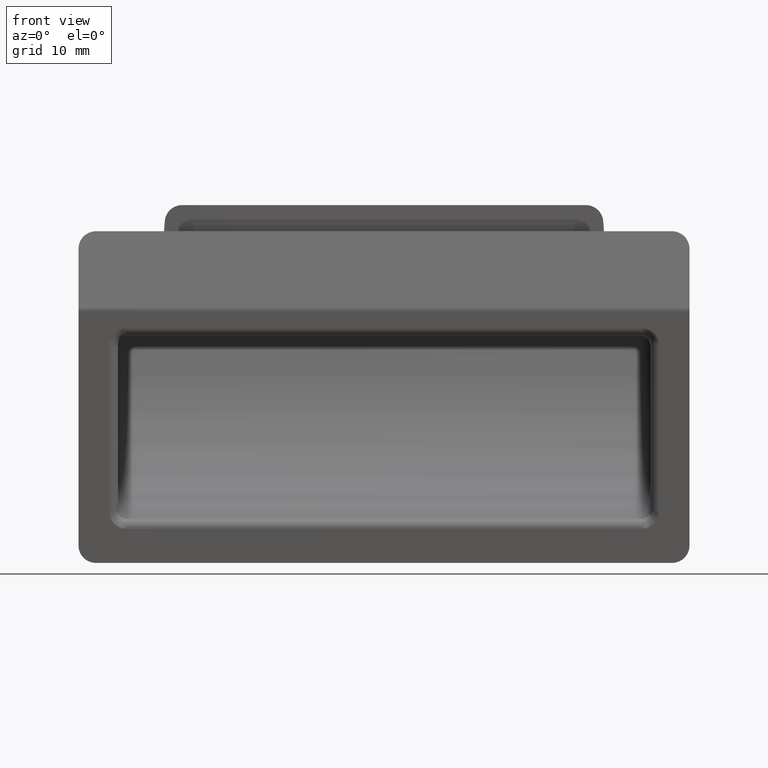
[diagram: clean part render]
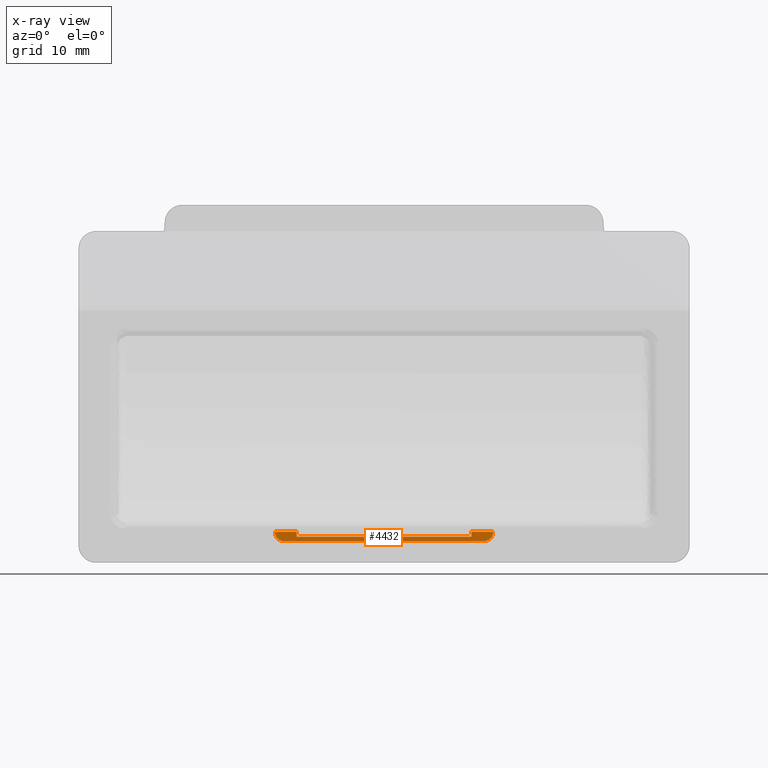
[diagram: x-ray — body ghosted, one internal face saturated and labeled with its STEP entity id]
A machine part, front view, then the same camera in x-ray: the body is ghosted and one INTERNAL B-rep face — a face not visible from any outside direction — is saturated and labeled: STEP entity #4432.
In plain terms, the highlighted face is a freeform B-spline surface patch.
Its self-contained STEP definition (entity closure, byte-faithful):
#1690=CARTESIAN_POINT('',(-10.0,1.0,-16.172962793631449));
#1691=VERTEX_POINT('',#1690);
#1705=CARTESIAN_POINT('',(-10.0,1.0,-16.750000000000000));
#1706=VERTEX_POINT('',#1705);
#1707=CARTESIAN_POINT('',(-10.0,1.0,-16.172962793631449));
#1708=CARTESIAN_POINT('',(-10.0,1.0,-16.750000000000000));
#1709=QUASI_UNIFORM_CURVE('',1,(#1707,#1708),.UNSPECIFIED.,.F.,.U.);
#1710=EDGE_CURVE('',#1691,#1706,#1709,.T.);
#1756=CARTESIAN_POINT('',(10.0,1.0,-16.750000000000000));
#1757=VERTEX_POINT('',#1756);
#1763=CARTESIAN_POINT('',(10.0,1.0,-16.172962793631449));
#1764=VERTEX_POINT('',#1763);
#1765=CARTESIAN_POINT('',(10.0,1.0,-16.172962793631449));
#1766=CARTESIAN_POINT('',(10.0,1.0,-16.750000000000000));
#1767=QUASI_UNIFORM_CURVE('',1,(#1765,#1766),.UNSPECIFIED.,.F.,.U.);
#1768=EDGE_CURVE('',#1764,#1757,#1767,.T.);
#1812=CARTESIAN_POINT('',(10.0,1.0,-16.750000000000000));
#1813=CARTESIAN_POINT('',(-10.0,1.0,-16.750000000000000));
#1814=QUASI_UNIFORM_CURVE('',1,(#1812,#1813),.UNSPECIFIED.,.F.,.U.);
#1815=EDGE_CURVE('',#1757,#1706,#1814,.T.);
#1878=CARTESIAN_POINT('',(-11.500000000000000,1.0,-17.250000000000000));
#1879=VERTEX_POINT('',#1878);
#1885=CARTESIAN_POINT('',(-12.500000000000000,1.0,-16.250000000000000));
#1886=VERTEX_POINT('',#1885);
#1887=CARTESIAN_POINT('',(-12.500000000000000,1.0,-16.250000000000000));
#1888=CARTESIAN_POINT('',(-12.500000000000000,1.0,-17.250000000000004));
#1889=CARTESIAN_POINT('',(-11.500000000000000,1.0,-17.250000000000000));
#1897=(BOUNDED_CURVE()B_SPLINE_CURVE(2,(#1887,#1888,#1889),.UNSPECIFIED.,.F.,.U.)CURVE()GEOMETRIC_REPRESENTATION_ITEM()QUASI_UNIFORM_CURVE()RATIONAL_B_SPLINE_CURVE((1.0,0.707106781186548,1.0))REPRESENTATION_ITEM(''));
#1898=EDGE_CURVE('',#1886,#1879,#1897,.T.);
#2188=CARTESIAN_POINT('',(11.500000000000000,1.0,-17.250000000000000));
#2189=VERTEX_POINT('',#2188);
#2190=CARTESIAN_POINT('',(12.500000000000000,1.0,-16.250000000000000));
#2191=VERTEX_POINT('',#2190);
#2192=CARTESIAN_POINT('',(11.500000000000000,1.0,-17.250000000000000));
#2193=CARTESIAN_POINT('',(12.500000000000000,1.0,-17.250000000000004));
#2194=CARTESIAN_POINT('',(12.500000000000000,1.0,-16.250000000000000));
#2202=(BOUNDED_CURVE()B_SPLINE_CURVE(2,(#2192,#2193,#2194),.UNSPECIFIED.,.F.,.U.)CURVE()GEOMETRIC_REPRESENTATION_ITEM()QUASI_UNIFORM_CURVE()RATIONAL_B_SPLINE_CURVE((1.0,0.707106781186548,1.0))REPRESENTATION_ITEM(''));
#2203=EDGE_CURVE('',#2189,#2191,#2202,.T.);
#4350=CARTESIAN_POINT('',(-12.500000000000000,1.0,-16.172962793631449));
#4351=VERTEX_POINT('',#4350);
#4352=CARTESIAN_POINT('',(-12.500000000000000,1.0,-16.250000000000000));
#4353=CARTESIAN_POINT('',(-12.500000000000000,1.0,-16.172962793631449));
#4354=QUASI_UNIFORM_CURVE('',1,(#4352,#4353),.UNSPECIFIED.,.F.,.U.);
#4355=EDGE_CURVE('',#1886,#4351,#4354,.T.);
#4380=CARTESIAN_POINT('',(12.500000000000000,1.0,-16.172962793631449));
#4381=VERTEX_POINT('',#4380);
#4395=CARTESIAN_POINT('',(12.500000000000000,1.0,-16.250000000000000));
#4396=CARTESIAN_POINT('',(12.500000000000000,1.0,-16.172962793631449));
#4397=QUASI_UNIFORM_CURVE('',1,(#4395,#4396),.UNSPECIFIED.,.F.,.U.);
#4398=EDGE_CURVE('',#2191,#4381,#4397,.T.);
#4403=CARTESIAN_POINT('',(-13.748749951545150,1.0,-16.119164787260850));
#4404=CARTESIAN_POINT('',(-13.748749951545150,1.0,-17.303798035258989));
#4405=CARTESIAN_POINT('',(13.748750622097401,1.0,-16.119164787260850));
#4406=CARTESIAN_POINT('',(13.748750622097401,1.0,-17.303798035258989));
#4407=B_SPLINE_SURFACE_WITH_KNOTS('',1,1,((#4403,#4405),(#4404,#4406)),.UNSPECIFIED.,.F.,.F.,.U.,(2,2),(2,2),(0.041708334948495,0.958291687403247),(0.0,27.497500573642551),.UNSPECIFIED.);
#4408=ORIENTED_EDGE('',*,*,#1768,.T.);
#4409=ORIENTED_EDGE('',*,*,#1815,.T.);
#4410=ORIENTED_EDGE('',*,*,#1710,.F.);
#4411=CARTESIAN_POINT('',(-10.0,1.0,-16.172962793631449));
#4412=CARTESIAN_POINT('',(-12.500000000000000,1.0,-16.172962793631449));
#4413=QUASI_UNIFORM_CURVE('',1,(#4411,#4412),.UNSPECIFIED.,.F.,.U.);
#4414=EDGE_CURVE('',#1691,#4351,#4413,.T.);
#4415=ORIENTED_EDGE('',*,*,#4414,.T.);
#4416=ORIENTED_EDGE('',*,*,#4355,.F.);
#4417=ORIENTED_EDGE('',*,*,#1898,.T.);
#4418=CARTESIAN_POINT('',(11.500000000000000,1.0,-17.250000000000000));
#4419=CARTESIAN_POINT('',(-11.500000000000000,1.0,-17.250000000000000));
#4420=QUASI_UNIFORM_CURVE('',1,(#4418,#4419),.UNSPECIFIED.,.F.,.U.);
#4421=EDGE_CURVE('',#2189,#1879,#4420,.T.);
#4422=ORIENTED_EDGE('',*,*,#4421,.F.);
#4423=ORIENTED_EDGE('',*,*,#2203,.T.);
#4424=ORIENTED_EDGE('',*,*,#4398,.T.);
#4425=CARTESIAN_POINT('',(12.500000000000000,1.0,-16.172962793631449));
#4426=CARTESIAN_POINT('',(10.0,1.0,-16.172962793631449));
#4427=QUASI_UNIFORM_CURVE('',1,(#4425,#4426),.UNSPECIFIED.,.F.,.U.);
#4428=EDGE_CURVE('',#4381,#1764,#4427,.T.);
#4429=ORIENTED_EDGE('',*,*,#4428,.T.);
#4430=EDGE_LOOP('',(#4408,#4409,#4410,#4415,#4416,#4417,#4422,#4423,#4424,#4429));
#4431=FACE_OUTER_BOUND('',#4430,.T.);
#4432=ADVANCED_FACE('',(#4431),#4407,.T.);